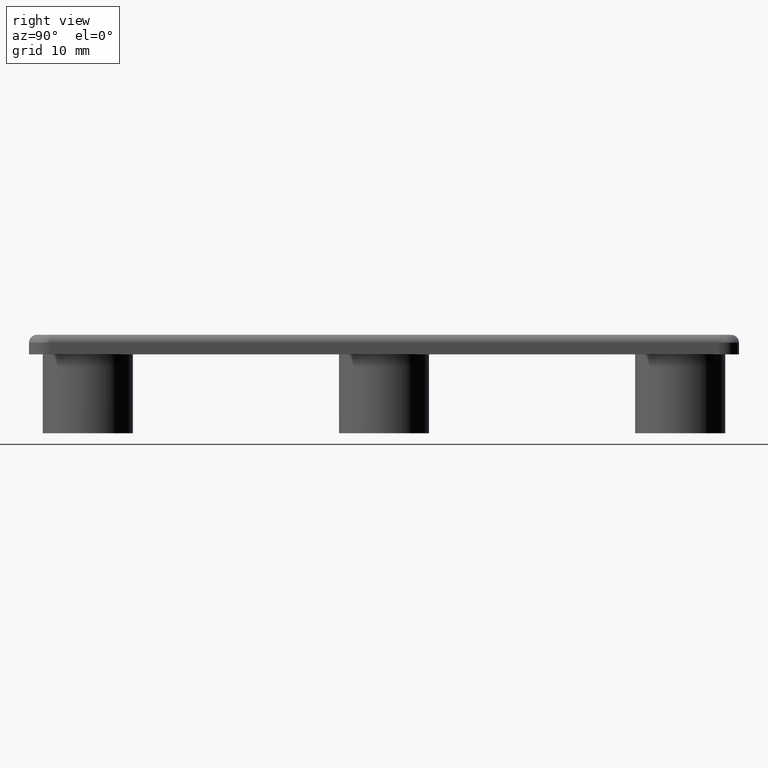
[diagram: clean part render]
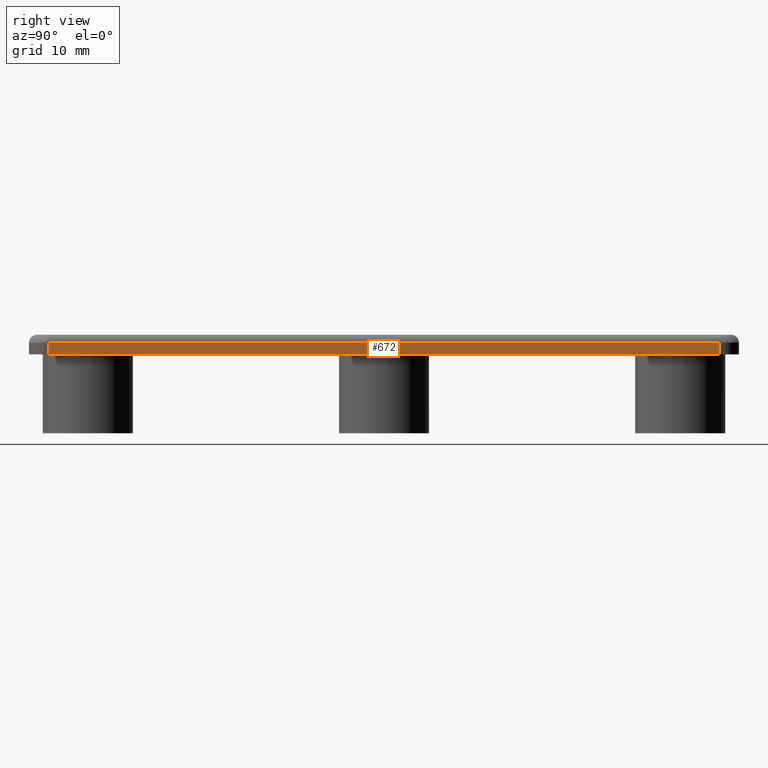
[diagram: same view with one face highlighted and labeled with its STEP entity id]
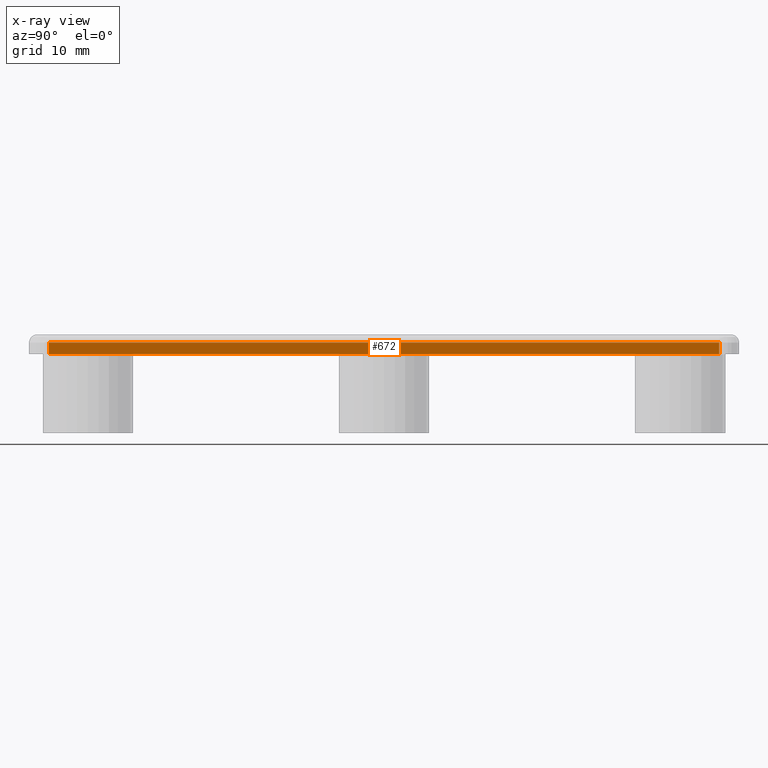
[diagram: x-ray of the same camera — body ghosted, the highlighted face saturated]
A machine part, right view. The second image highlights one B-rep face of the part: STEP entity #672.
The next image is the same camera in x-ray: the body ghosted, the highlighted face saturated — about 0% of this face is hidden behind the body in this view.
In plain terms, the highlighted planar face has unit normal (-1, 0, 0).
Its self-contained STEP definition (entity closure, byte-faithful):
#17=CARTESIAN_POINT('',(9.250044999962938,42.499999999829924,1.132804E-015));
#18=VERTEX_POINT('',#17);
#26=CARTESIAN_POINT('',(9.250044999962938,-42.499954999830152,1.132804E-015));
#27=VERTEX_POINT('',#26);
#28=CARTESIAN_POINT('',(9.250044999962938,42.499999999829924,1.132804E-015));
#29=DIRECTION('',(0.0,-1.0,0.0));
#30=VECTOR('',#29,84.999954999660019);
#31=LINE('',#28,#30);
#32=EDGE_CURVE('',#18,#27,#31,.T.);
#630=CARTESIAN_POINT('',(9.250044999962938,42.499999999829924,1.500000000000001));
#631=VERTEX_POINT('',#630);
#639=CARTESIAN_POINT('',(9.250044999962938,42.499999999829924,1.132804E-015));
#640=DIRECTION('',(0.0,0.0,1.0));
#641=VECTOR('',#640,1.500000000000000);
#642=LINE('',#639,#641);
#643=EDGE_CURVE('',#18,#631,#642,.T.);
#649=CARTESIAN_POINT('',(9.250044999962938,42.499999999829924,1.132804E-015));
#650=DIRECTION('',(-1.0,0.0,0.0));
#651=DIRECTION('',(0.0,-1.0,0.0));
#652=AXIS2_PLACEMENT_3D('',#649,#650,#651);
#653=PLANE('',#652);
#654=ORIENTED_EDGE('',*,*,#643,.T.);
#655=CARTESIAN_POINT('',(9.250044999962944,-42.499954999830152,1.500000000000001));
#656=VERTEX_POINT('',#655);
#657=CARTESIAN_POINT('',(9.250044999962938,42.499999999829924,1.500000000000001));
#658=DIRECTION('',(0.0,-1.0,0.0));
#659=VECTOR('',#658,84.999954999660076);
#660=LINE('',#657,#659);
#661=EDGE_CURVE('',#631,#656,#660,.T.);
#662=ORIENTED_EDGE('',*,*,#661,.T.);
#663=CARTESIAN_POINT('',(9.250044999962938,-42.499954999830152,1.132804E-015));
#664=DIRECTION('',(0.0,0.0,1.0));
#665=VECTOR('',#664,1.500000000000000);
#666=LINE('',#663,#665);
#667=EDGE_CURVE('',#27,#656,#666,.T.);
#668=ORIENTED_EDGE('',*,*,#667,.F.);
#669=ORIENTED_EDGE('',*,*,#32,.F.);
#670=EDGE_LOOP('',(#654,#662,#668,#669));
#671=FACE_OUTER_BOUND('',#670,.T.);
#672=ADVANCED_FACE('',(#671),#653,.F.);